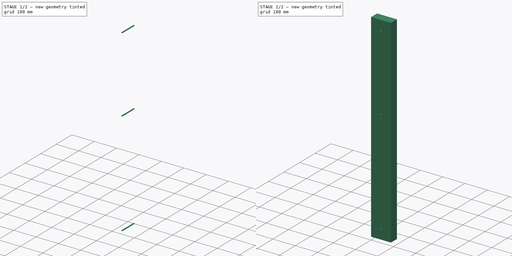
[diagram: build sequence overview — one tinted view per stage of 2, left to right]
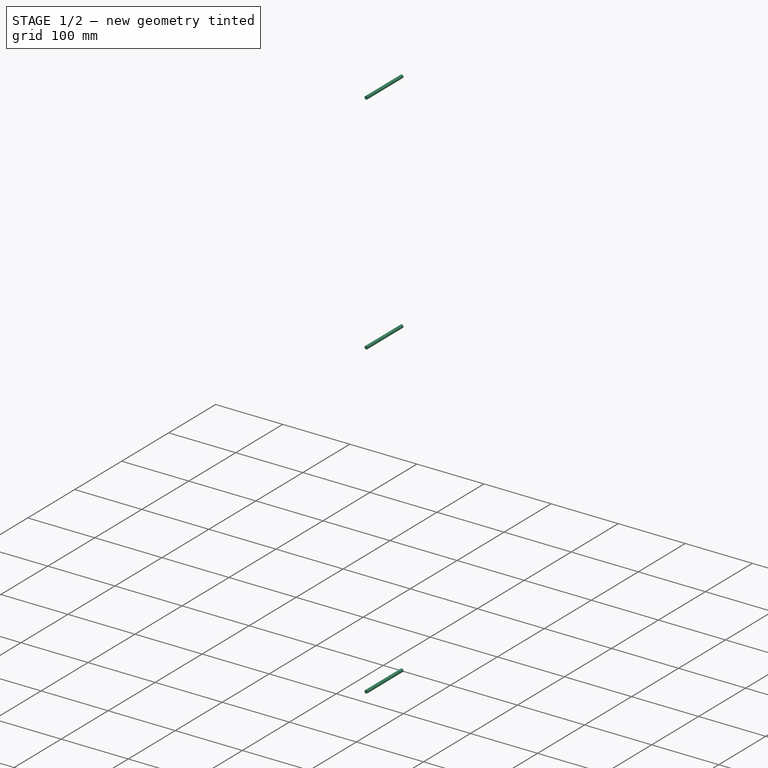
[diagram: stage 1 of 2 — iso view after this stage's code; geometry added in this stage tinted green]
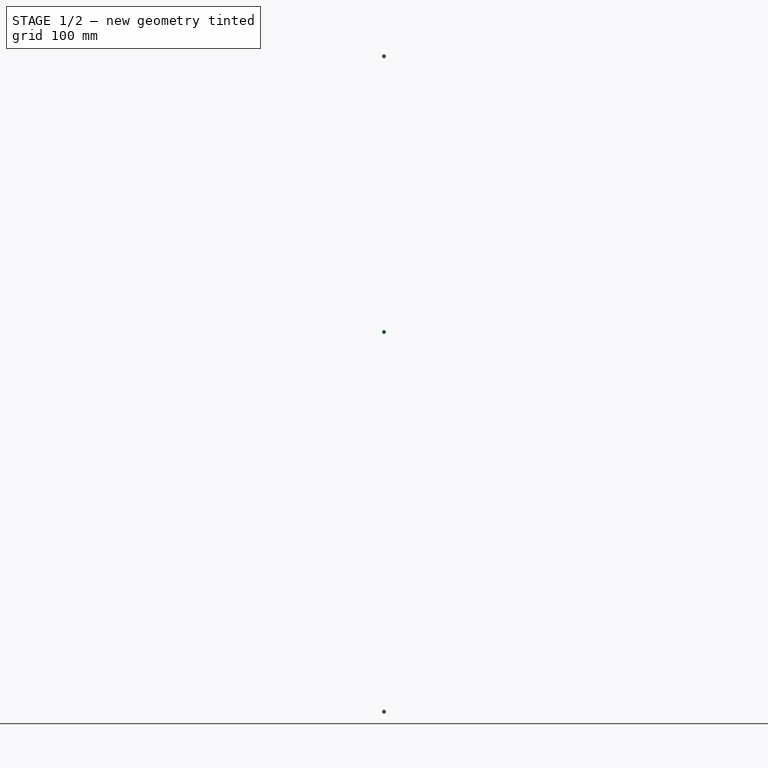
[diagram: stage 1 of 2 — front view after this stage's code; geometry added in this stage tinted green]
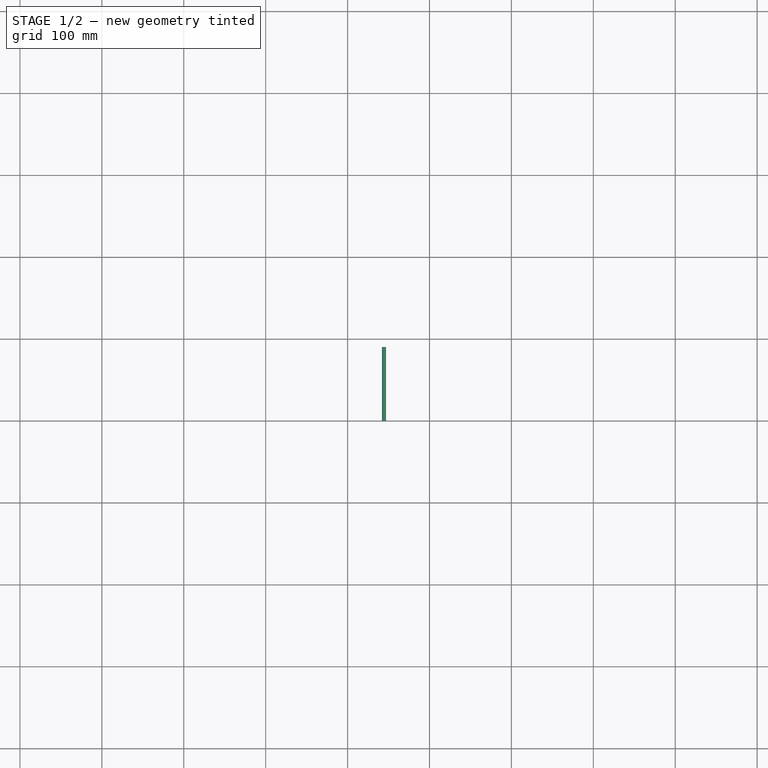
[diagram: stage 1 of 2 — top view after this stage's code; geometry added in this stage tinted green]
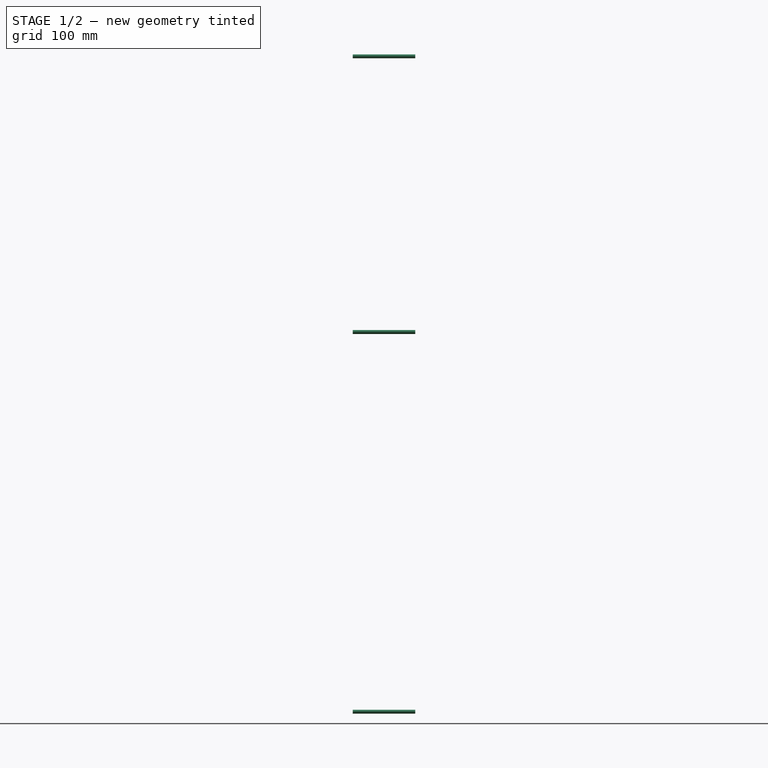
[diagram: stage 1 of 2 — right view after this stage's code; geometry added in this stage tinted green]
FCSTD DOCUMENT  (FreeCAD 0.15R4671 (Git))
Label: wb_bottom_rail
License: All rights reserved
LicenseURL: http://en.wikipedia.org/wiki/All_rights_reserved
objects: Sketcher::SketchObject×2, Part::Extrusion×2, Part::Cut×1
note: 5 computed .brp shape members not serialized (recipe doc carries the construction recipe); baked Part::Feature solids carry a one-line shape summary decoded from their .brp

FEATURE [Sketcher::SketchObject] Sketch
  sketch-geometry (4):
    g0: LineSegment StartX=0 StartY=0 StartZ=0 EndX=88.9 EndY=0 EndZ=0
    g1: LineSegment StartX=88.9 StartY=0 StartZ=0 EndX=88.9 EndY=38.1 EndZ=0
    g2: LineSegment StartX=88.9 StartY=38.1 StartZ=0 EndX=0 EndY=38.1 EndZ=0
    g3: LineSegment StartX=0 StartY=38.1 StartZ=0 EndX=0 EndY=0 EndZ=0
  constraints (11):
    c: Coincident(g0,g1)
    c: Coincident(g1,g2)
    c: Coincident(g2,g3)
    c: Coincident(g3,g0)
    c: Horizontal(g0)
    c: Horizontal(g2)
    c: Vertical(g1)
    c: Vertical(g3)
    c: Coincident(g0,g-1)
    c: Distance(g3) = 38.1
    c: Distance(g0) = 88.9
FEATURE [Part::Extrusion] Extrude
  Base = -> Sketch
  Dir = (0,0,889)
  Solid = true
FEATURE [Sketcher::SketchObject] Sketch001
  ExternalGeometry = -> [Extrude]
  Placement = pos=(0,0,0) rot=(1,0,0;1.5708rad)
  Support = -> Extrude [Face1]
  sketch-geometry (3):
    g0: Circle CenterX=44.45 CenterY=44.45 CenterZ=0 NormalX=0 NormalY=0 NormalZ=1 Radius=2.38125
    g1: Circle CenterX=44.45 CenterY=844.55 CenterZ=0 NormalX=0 NormalY=0 NormalZ=1 Radius=2.38125
    g2: Circle CenterX=44.45 CenterY=508 CenterZ=0 NormalX=0 NormalY=0 NormalZ=1 Radius=2.38125
  constraints (9):
    c: Distance(g0,g-5) = 44.45
    c: Distance(g0,g-4) = 44.45
    c: Distance(g1,g-4) = 44.45
    c: Distance(g1,g-3) = 44.45
    c: Radius(g0) = 2.38125
    c: Equal(g0,g1)
    c: Equal(g2,g0)
    c: Distance(g2,g-4) = 44.45
    c: Distance(g2,g-3) = 381
FEATURE [Part::Extrusion] Extrude001
  Base = -> Sketch001
  Dir = (0,76.2,0)
  Solid = true
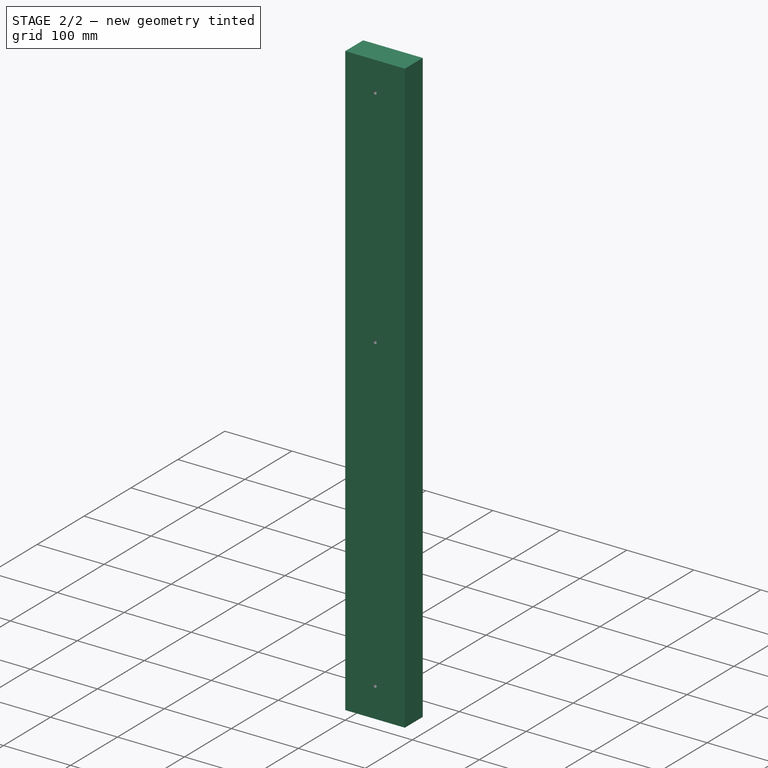
[diagram: stage 2 of 2 — iso view after this stage's code; geometry added in this stage tinted green]
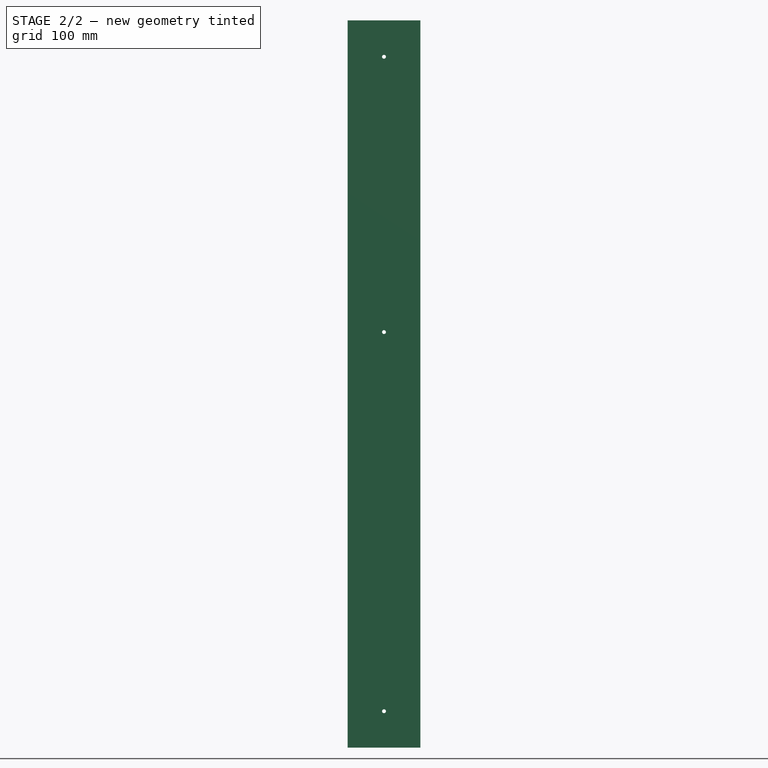
[diagram: stage 2 of 2 — front view after this stage's code; geometry added in this stage tinted green]
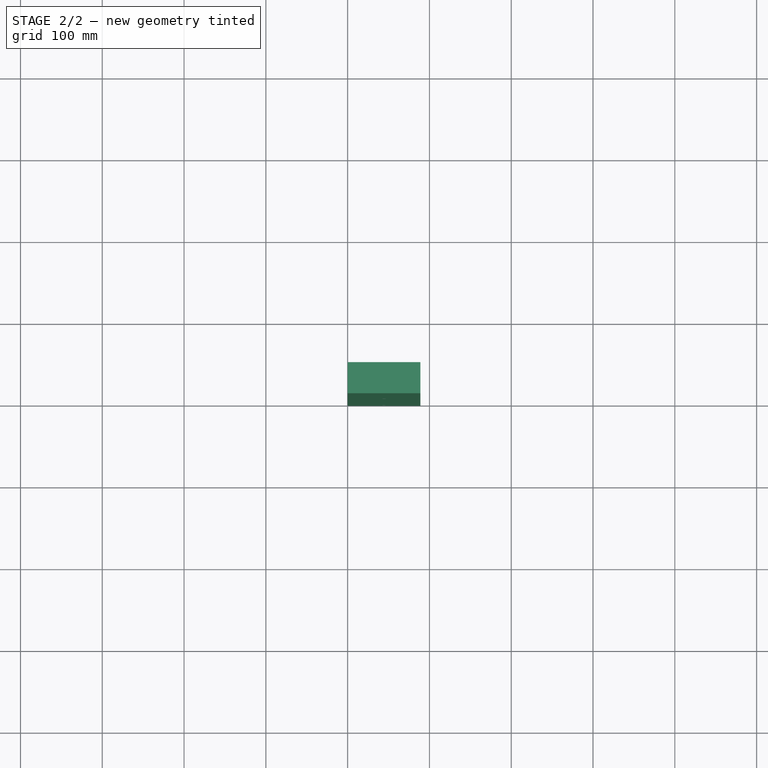
[diagram: stage 2 of 2 — top view after this stage's code; geometry added in this stage tinted green]
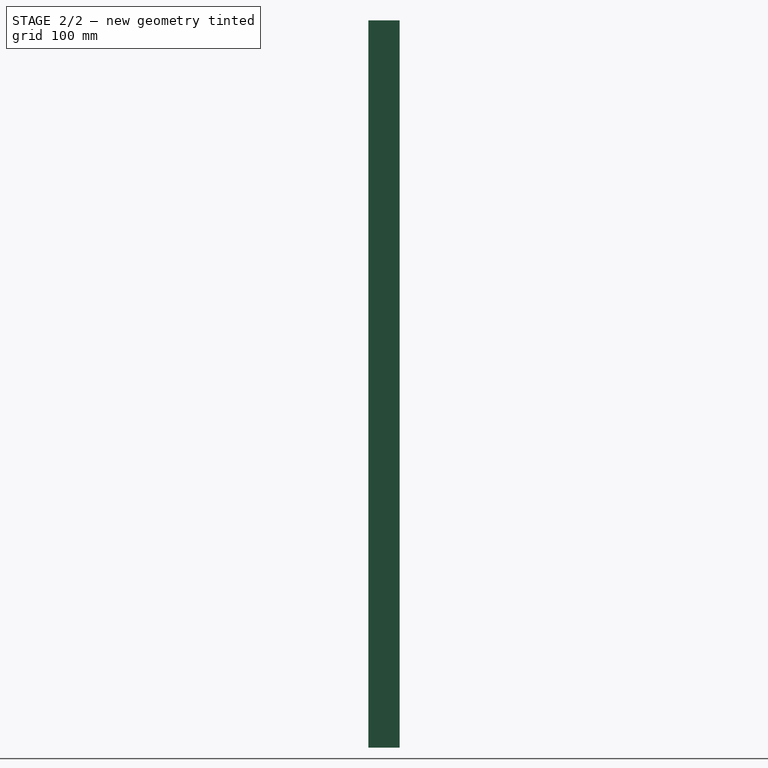
[diagram: stage 2 of 2 — right view after this stage's code; geometry added in this stage tinted green]
FEATURE [Part::Cut] Cut
  Base = -> Extrude
  Tool = -> Extrude001
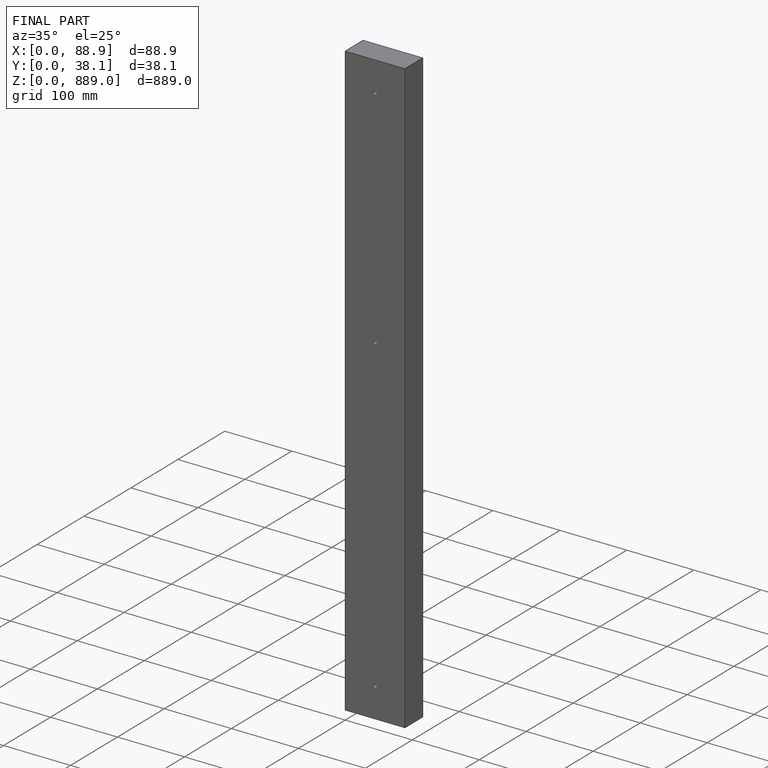
[diagram: finished part — iso view with bounding-box wireframe]
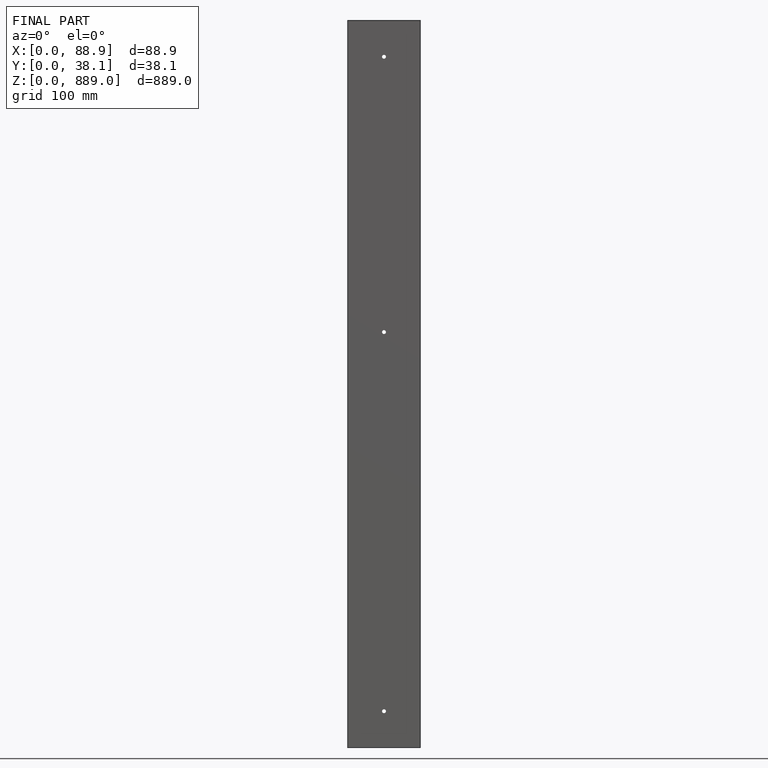
[diagram: finished part — front view with bounding-box wireframe]
